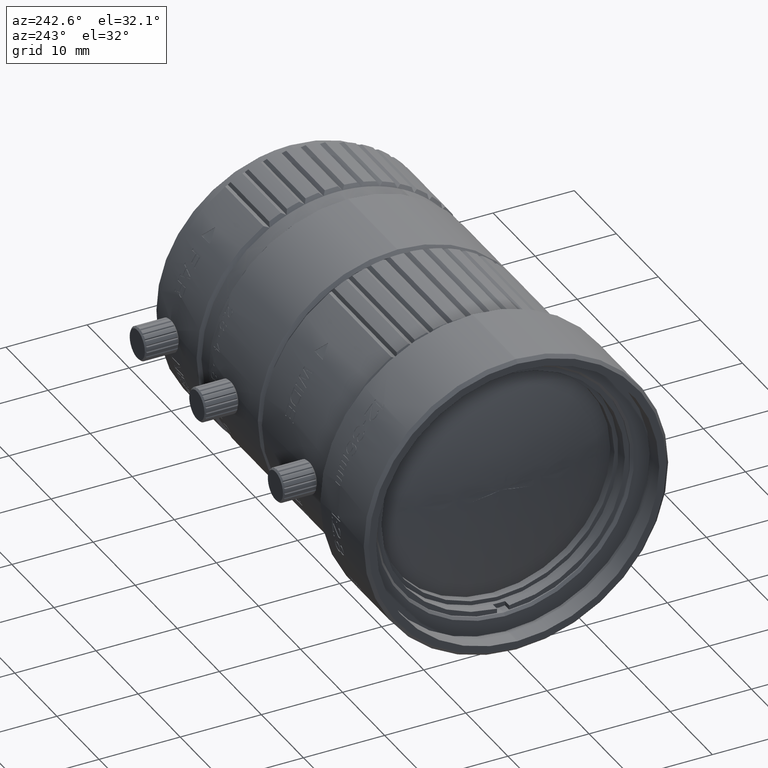
[diagram: clean part render]
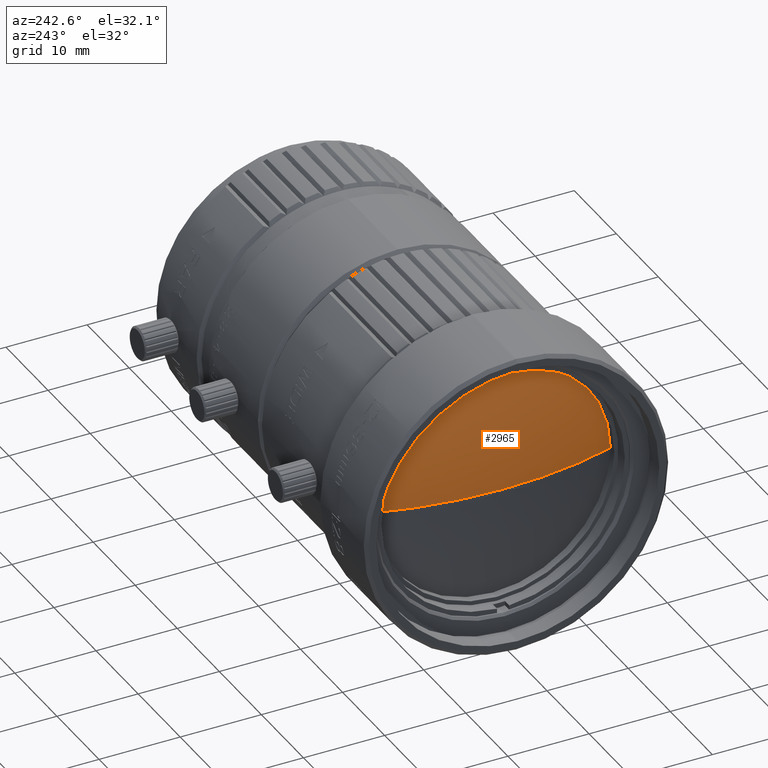
[diagram: same view with one face highlighted and labeled with its STEP entity id]
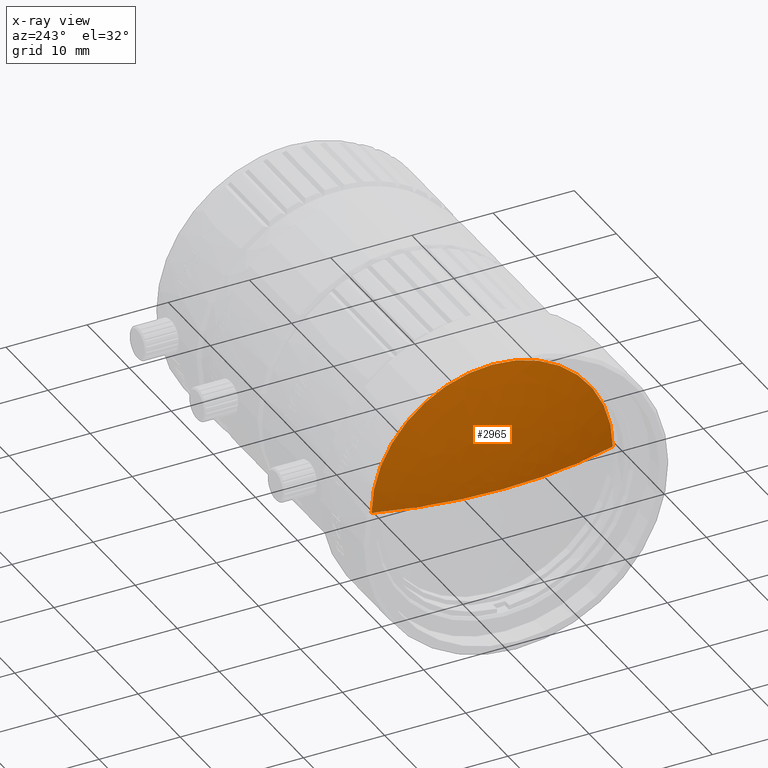
[diagram: x-ray of the same camera — body ghosted, the highlighted face saturated]
A machine part, auxiliary view. The second image highlights one B-rep face of the part: STEP entity #2965.
The next image is the same camera in x-ray: the body ghosted, the highlighted face saturated — about 0% of this face is hidden behind the body in this view.
In plain terms, the highlighted face is a freeform B-spline surface patch.
Its self-contained STEP definition (entity closure, byte-faithful):
#2965 = ADVANCED_FACE ( 'NONE', ( #47691 ), #28031, .F. ) ;
#3423 = EDGE_CURVE ( 'NONE', #38353, #4546, #17663, .T. ) ;
#3496 = DIRECTION ( 'NONE',  ( -1.000000000000000000, 0.000000000000000000, 0.000000000000000000 ) ) ;
#4526 = CARTESIAN_POINT ( 'NONE',  ( 1.546991939554662521, 10.04008108464661575, 20.08016216929319953 ) ) ;
#4546 = VERTEX_POINT ( 'NONE', #64684 ) ;
#5426 = AXIS2_PLACEMENT_3D ( 'NONE', #16972, #38213, #59458 ) ;
#5956 = CARTESIAN_POINT ( 'NONE',  ( 50.64391843594999898, 0.000000000000000000, 0.000000000000000000 ) ) ;
#6271 = DIRECTION ( 'NONE',  ( 0.000000000000000000, -1.224646799147351975E-16, -1.000000000000000000 ) ) ;
#10460 = CARTESIAN_POINT ( 'NONE',  ( 0.7859184359499880035, 0.000000000000000000, 0.000000000000000000 ) ) ;
#10758 = ORIENTED_EDGE ( 'NONE', *, *, #53065, .T. ) ;
#10800 = CARTESIAN_POINT ( 'NONE',  ( 0.7859184359499878925, -5.048886568217194615, 10.09777313643439101 ) ) ;
#13484 = CARTESIAN_POINT ( 'NONE',  ( 0.7859184359499740147, 0.000000000000000000, 0.000000000000000000 ) ) ;
#14056 = CARTESIAN_POINT ( 'NONE',  ( 1.546991939554663853, -10.04008108464661575, 2.459110632698470424E-15 ) ) ;
#16011 = CARTESIAN_POINT ( 'NONE',  ( 3.051745847754550045, 14.85951790386950044, -1.819766103784655150E-15 ) ) ;
#16972 = CARTESIAN_POINT ( 'NONE',  ( 3.051745847754539831, 0.000000000000000000, 0.000000000000000000 ) ) ;
#17073 = DIRECTION ( 'NONE',  ( -1.000000000000000000, 0.000000000000000000, 0.000000000000000000 ) ) ;
#17446 = DIRECTION ( 'NONE',  ( -1.000000000000000000, 0.000000000000000000, 0.000000000000000000 ) ) ;
#17663 = CIRCLE ( 'NONE', #5426, 14.85951790386950044 ) ;
#19798 = EDGE_CURVE ( 'NONE', #4546, #28895, #51105, .T. ) ;
#21118 = AXIS2_PLACEMENT_3D ( 'NONE', #46315, #3496, #61653 ) ;
#21935 = CARTESIAN_POINT ( 'NONE',  ( 0.7859184359499880035, 0.000000000000000000, 0.000000000000000000 ) ) ;
#26828 = CARTESIAN_POINT ( 'NONE',  ( 3.051745847754543828, 14.85951790386949867, 29.71903580773899733 ) ) ;
#27000 = CIRCLE ( 'NONE', #54759, 49.85799999999999699 ) ;
#28031 =( BOUNDED_SURFACE ( )  B_SPLINE_SURFACE ( 3, 3, ( 
 ( #35291, #43161, #10460, #21935 ),
 ( #48036, #42484, #10800, #48381 ),
 ( #68957, #4526, #68615, #14056 ),
 ( #16011, #26828, #37251, #52902 ) ),
 .UNSPECIFIED., .F., .F., .F. ) 
 B_SPLINE_SURFACE_WITH_KNOTS ( ( 4, 4 ),
 ( 4, 4 ),
 ( 0.000000000000000000, 1.000000000000000000 ),
 ( 0.000000000000000000, 1.000000000000000000 ),
 .UNSPECIFIED. ) 
 GEOMETRIC_REPRESENTATION_ITEM ( )  RATIONAL_B_SPLINE_SURFACE ( (
 ( 1.000000000000000000, 0.3333333333333335369, 0.3333333333333335369, 1.000000000000000000),
 ( 0.9923822079702390164, 0.3307940693234135421, 0.3307940693234135421, 0.9923822079702390164),
 ( 0.9923822079702390164, 0.3307940693234135421, 0.3307940693234135421, 0.9923822079702390164),
 ( 1.000000000000000000, 0.3333333333333335369, 0.3333333333333335369, 1.000000000000000000) ) ) 
 REPRESENTATION_ITEM ( '' )  SURFACE ( )  );
#28895 = VERTEX_POINT ( 'NONE', #62290 ) ;
#33034 = ORIENTED_EDGE ( 'NONE', *, *, #3423, .T. ) ;
#35291 = CARTESIAN_POINT ( 'NONE',  ( 0.7859184359499880035, 0.000000000000000000, 0.000000000000000000 ) ) ;
#35427 = EDGE_CURVE ( 'NONE', #57442, #28895, #27000, .T. ) ;
#37251 = CARTESIAN_POINT ( 'NONE',  ( 3.051745847754543828, -14.85951790386949867, 29.71903580773899733 ) ) ;
#38213 = DIRECTION ( 'NONE',  ( -1.000000000000000000, 0.000000000000000000, 0.000000000000000000 ) ) ;
#38353 = VERTEX_POINT ( 'NONE', #52509 ) ;
#42484 = CARTESIAN_POINT ( 'NONE',  ( 0.7859184359499878925, 5.048886568217194615, 10.09777313643439101 ) ) ;
#43161 = CARTESIAN_POINT ( 'NONE',  ( 0.7859184359499880035, 0.000000000000000000, 0.000000000000000000 ) ) ;
#44228 = CARTESIAN_POINT ( 'NONE',  ( 50.64391843594999898, 0.000000000000000000, 0.000000000000000000 ) ) ;
#46315 = CARTESIAN_POINT ( 'NONE',  ( 3.051745847754539831, 0.000000000000000000, 0.000000000000000000 ) ) ;
#47691 = FACE_OUTER_BOUND ( 'NONE', #67485, .T. ) ;
#48036 = CARTESIAN_POINT ( 'NONE',  ( 0.7859184359499881145, 5.048886568217201720, -6.183102775025261617E-16 ) ) ;
#48381 = CARTESIAN_POINT ( 'NONE',  ( 0.7859184359499881145, -5.048886568217201720, 1.236620555005052323E-15 ) ) ;
#48434 = AXIS2_PLACEMENT_3D ( 'NONE', #5956, #54687, #17446 ) ;
#49406 = ORIENTED_EDGE ( 'NONE', *, *, #35427, .F. ) ;
#50105 = ORIENTED_EDGE ( 'NONE', *, *, #19798, .T. ) ;
#51105 = CIRCLE ( 'NONE', #21118, 14.85951790386950044 ) ;
#52509 = CARTESIAN_POINT ( 'NONE',  ( 3.051745847754539831, -14.85951790386950044, 0.000000000000000000 ) ) ;
#52902 = CARTESIAN_POINT ( 'NONE',  ( 3.051745847754550045, -14.85951790386950044, 3.639532207569315033E-15 ) ) ;
#53065 = EDGE_CURVE ( 'NONE', #57442, #38353, #60674, .T. ) ;
#54687 = DIRECTION ( 'NONE',  ( 0.000000000000000000, 0.000000000000000000, 1.000000000000000000 ) ) ;
#54759 = AXIS2_PLACEMENT_3D ( 'NONE', #44228, #6271, #17073 ) ;
#57442 = VERTEX_POINT ( 'NONE', #13484 ) ;
#59458 = DIRECTION ( 'NONE',  ( 0.000000000000000000, 0.000000000000000000, -1.000000000000000000 ) ) ;
#60674 = CIRCLE ( 'NONE', #48434, 49.85799999999999699 ) ;
#61653 = DIRECTION ( 'NONE',  ( 0.000000000000000000, 0.000000000000000000, -1.000000000000000000 ) ) ;
#62290 = CARTESIAN_POINT ( 'NONE',  ( 3.051745847754539831, 14.85951790386950044, -1.819766103784655150E-15 ) ) ;
#64684 = CARTESIAN_POINT ( 'NONE',  ( 3.051745847754539831, 4.983201047636649884E-13, 14.85951790386950044 ) ) ;
#67485 = EDGE_LOOP ( 'NONE', ( #49406, #10758, #33034, #50105 ) ) ;
#68615 = CARTESIAN_POINT ( 'NONE',  ( 1.546991939554662521, -10.04008108464659976, 20.08016216929319953 ) ) ;
#68957 = CARTESIAN_POINT ( 'NONE',  ( 1.546991939554663853, 10.04008108464661575, -1.229555316349235015E-15 ) ) ;